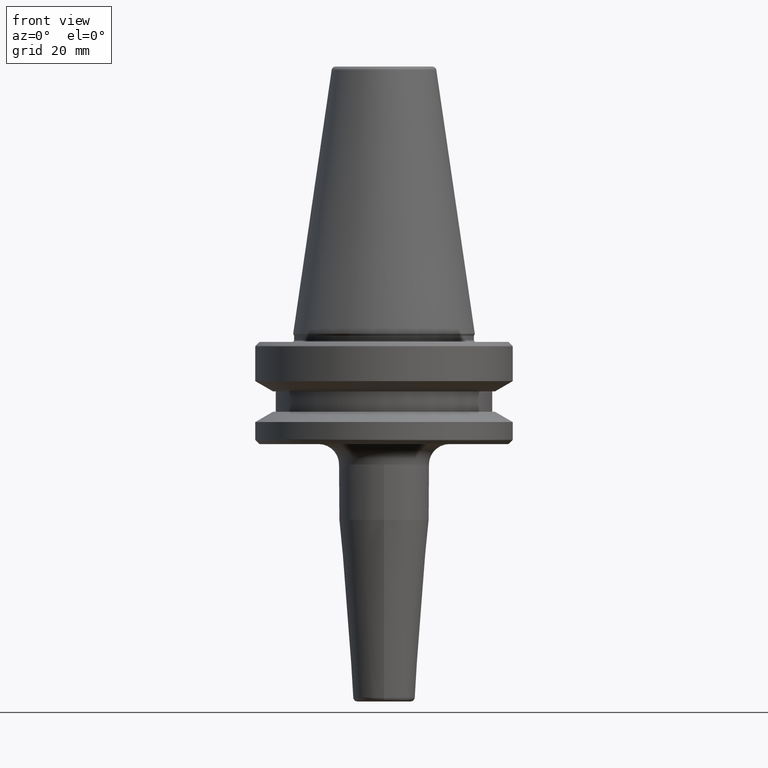
[diagram: clean part render]
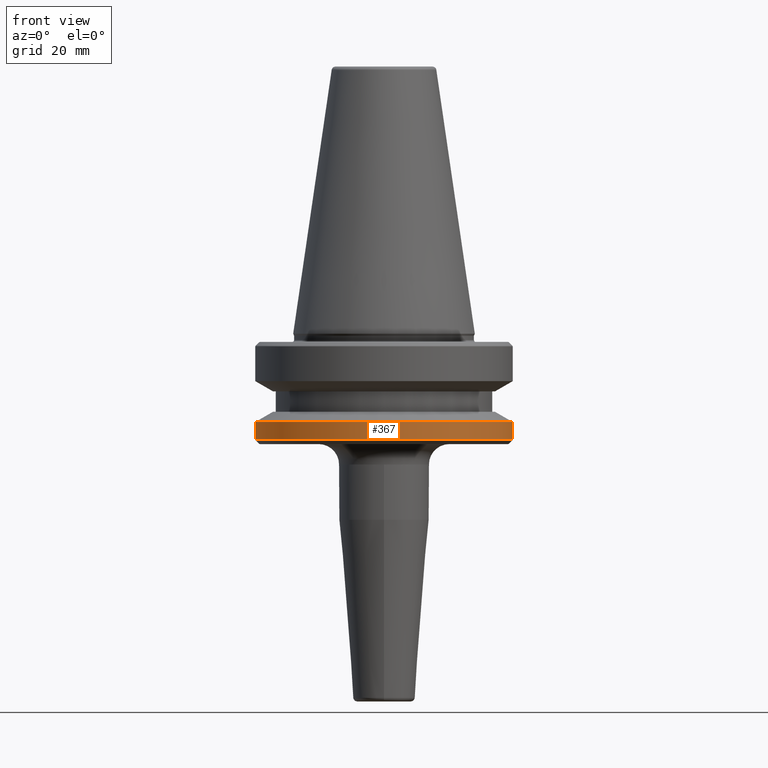
[diagram: same view with one face highlighted and labeled with its STEP entity id]
A machine part, front view. The second image highlights one B-rep face of the part: STEP entity #367.
In plain terms, the highlighted cylindrical surface (partial cylindrical patch) has radius 31.5 mm, axis along (-0, -0, 1).
Its self-contained STEP definition (entity closure, byte-faithful):
#26 = LINE ( 'NONE', #421, #788 ) ;
#48 = DIRECTION ( 'NONE',  ( 1.000000000000000000, 0.0000000000000000000, 0.0000000000000000000 ) ) ;
#165 = EDGE_CURVE ( 'NONE', #829, #445, #26, .T. ) ;
#205 = EDGE_CURVE ( 'NONE', #829, #716, #759, .T. ) ;
#363 = CIRCLE ( 'NONE', #783, 31.50000000000000000 ) ;
#367 = ADVANCED_FACE ( 'NONE', ( #411 ), #947, .T. ) ;
#411 = FACE_OUTER_BOUND ( 'NONE', #477, .T. ) ;
#421 = CARTESIAN_POINT ( 'NONE',  ( -31.50000000000000000, 3.857637417314162700E-015, 69.75694866325665100 ) ) ;
#445 = VERTEX_POINT ( 'NONE', #447 ) ;
#447 = CARTESIAN_POINT ( 'NONE',  ( -31.50000000000000000, 3.857637417314162700E-015, -21.60014200631675500 ) ) ;
#477 = EDGE_LOOP ( 'NONE', ( #871, #962, #1231, #1050 ) ) ;
#501 = DIRECTION ( 'NONE',  ( -0.0000000000000000000, -0.0000000000000000000, 1.000000000000000000 ) ) ;
#514 = CARTESIAN_POINT ( 'NONE',  ( 0.0000000000000000000, 0.0000000000000000000, -25.83431457505076900 ) ) ;
#547 = EDGE_CURVE ( 'NONE', #716, #606, #786, .T. ) ;
#594 = CARTESIAN_POINT ( 'NONE',  ( 0.0000000000000000000, 0.0000000000000000000, 69.75694866325665100 ) ) ;
#606 = VERTEX_POINT ( 'NONE', #1076 ) ;
#614 = DIRECTION ( 'NONE',  ( -0.0000000000000000000, -0.0000000000000000000, 1.000000000000000000 ) ) ;
#615 = DIRECTION ( 'NONE',  ( 1.000000000000000000, 0.0000000000000000000, 0.0000000000000000000 ) ) ;
#645 = DIRECTION ( 'NONE',  ( -0.0000000000000000000, -0.0000000000000000000, 1.000000000000000000 ) ) ;
#716 = VERTEX_POINT ( 'NONE', #798 ) ;
#759 = CIRCLE ( 'NONE', #1102, 31.50000000000000000 ) ;
#783 = AXIS2_PLACEMENT_3D ( 'NONE', #1235, #645, #48 ) ;
#786 = LINE ( 'NONE', #1275, #1277 ) ;
#788 = VECTOR ( 'NONE', #614, 1000.000000000000000 ) ;
#798 = CARTESIAN_POINT ( 'NONE',  ( 31.50000000000000000, 0.0000000000000000000, -25.83431457505076900 ) ) ;
#829 = VERTEX_POINT ( 'NONE', #886 ) ;
#865 = AXIS2_PLACEMENT_3D ( 'NONE', #594, #501, #1195 ) ;
#871 = ORIENTED_EDGE ( 'NONE', *, *, #165, .F. ) ;
#886 = CARTESIAN_POINT ( 'NONE',  ( -31.50000000000000000, 3.857637417314162700E-015, -25.83431457505076900 ) ) ;
#947 = CYLINDRICAL_SURFACE ( 'NONE', #865, 31.50000000000000000 ) ;
#962 = ORIENTED_EDGE ( 'NONE', *, *, #205, .T. ) ;
#1050 = ORIENTED_EDGE ( 'NONE', *, *, #1260, .F. ) ;
#1076 = CARTESIAN_POINT ( 'NONE',  ( 31.50000000000000000, 0.0000000000000000000, -21.60014200631675500 ) ) ;
#1102 = AXIS2_PLACEMENT_3D ( 'NONE', #514, #1208, #615 ) ;
#1195 = DIRECTION ( 'NONE',  ( 1.000000000000000000, 0.0000000000000000000, 0.0000000000000000000 ) ) ;
#1208 = DIRECTION ( 'NONE',  ( -0.0000000000000000000, -0.0000000000000000000, 1.000000000000000000 ) ) ;
#1231 = ORIENTED_EDGE ( 'NONE', *, *, #547, .T. ) ;
#1235 = CARTESIAN_POINT ( 'NONE',  ( 0.0000000000000000000, 0.0000000000000000000, -21.60014200631675500 ) ) ;
#1260 = EDGE_CURVE ( 'NONE', #445, #606, #363, .T. ) ;
#1271 = DIRECTION ( 'NONE',  ( -0.0000000000000000000, -0.0000000000000000000, 1.000000000000000000 ) ) ;
#1275 = CARTESIAN_POINT ( 'NONE',  ( 31.50000000000000000, 0.0000000000000000000, 69.75694866325665100 ) ) ;
#1277 = VECTOR ( 'NONE', #1271, 1000.000000000000000 ) ;